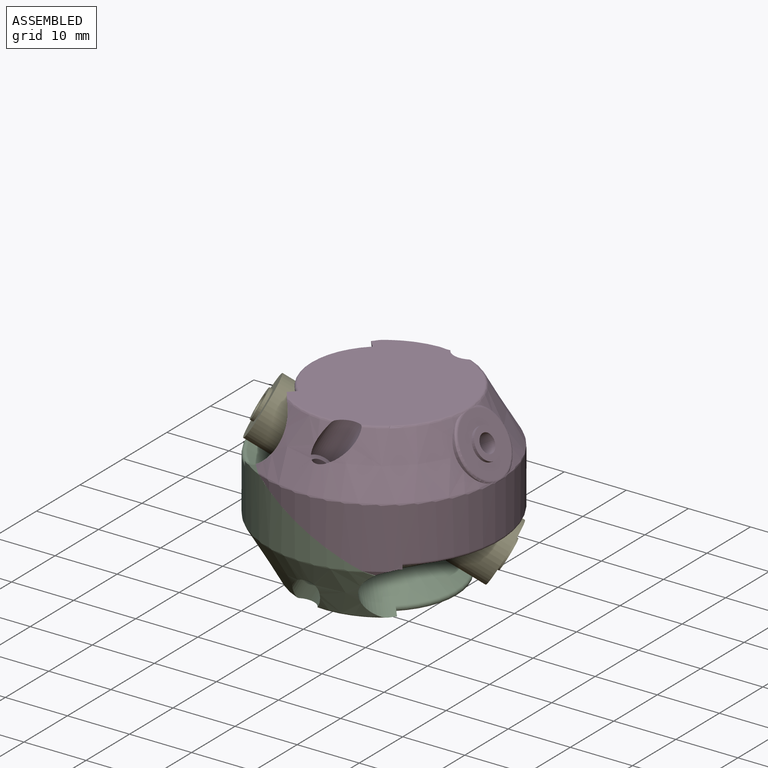
[diagram: assembled view]
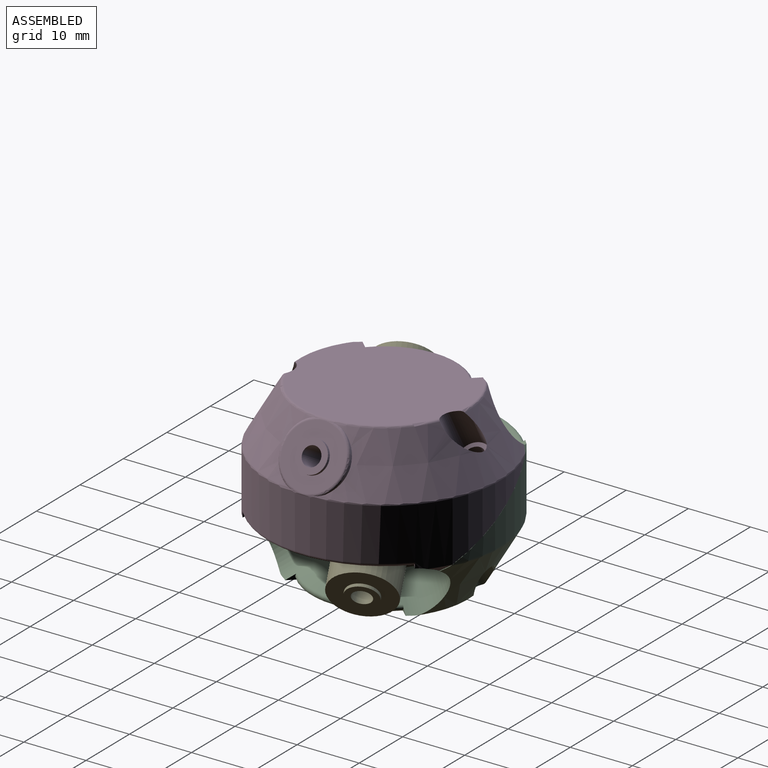
[diagram: assembled view, second angle]
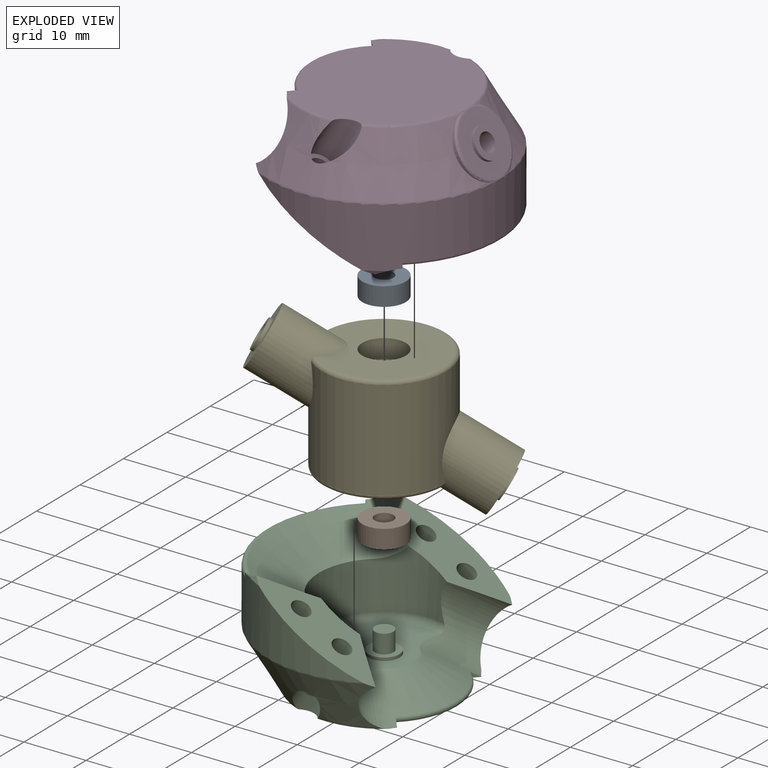
[diagram: exploded view]
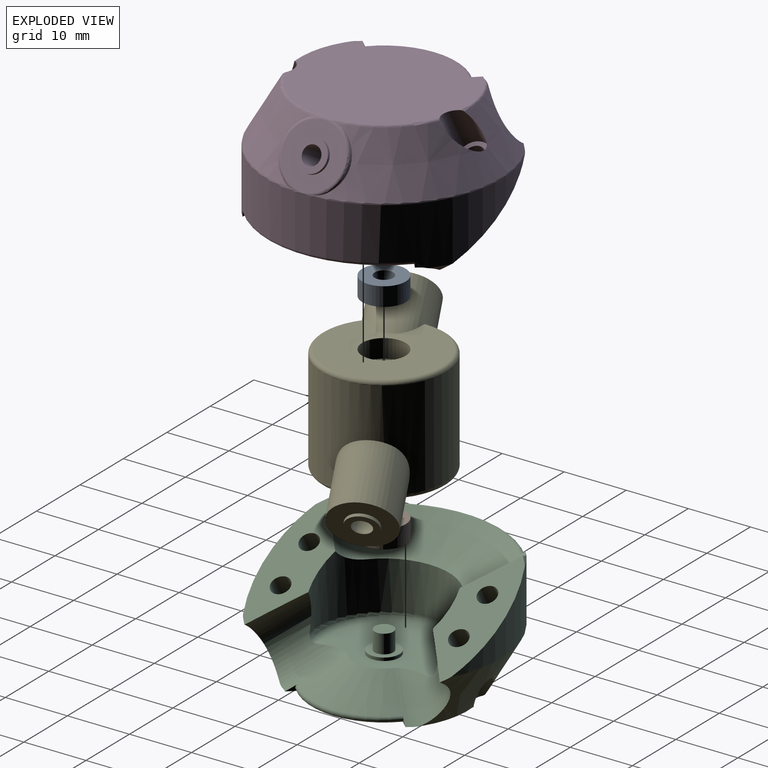
[diagram: exploded view, second angle]
ASSEMBLY  parts=5 mates=4
PART A: 4 faces, bbox 6.1x7x7.6 mm
  f0: cylinder r=1.5mm len=4.1mm, axis (-0.87,0,0.5), area 28.3mm2, adj f1,f3
  f1: plane 7x6.06mm, normal (-0.87,0,0.5), area 31.4mm2, adj f0,f2
  f2: cylinder r=3.5mm len=7.56mm, axis (-0.87,0,0.5), area 66mm2, adj f1,f3
  f3: plane 7x6.06mm, normal (0.87,0,-0.5), area 31.4mm2, adj f0,f2
PART B: same geometry as A
PART C: 49 faces, bbox 27.9x41x37.5 mm
  f0: torus R=13.31mm, axis (-0.87,0,0.5), area 5.2mm2, adj f4,f13,f37,f46
  f1: torus R=13.31mm, axis (-0.87,0,0.5), area 5.2mm2, adj f10,f13,f35,f48
  f2: cylinder r=10.5mm len=21mm, axis (-0.87,0,0.5), area 302.4mm2, adj f5,f11,f12,f29,f35,f36,f37,f38
  f3: torus R=13.31mm, axis (-0.87,0,0.5), area 16.6mm2, adj f4,f10,f13,f22,f46,f48
  f4: cone r=13.74mm half-angle=30deg, axis (0.87,0,-0.5), area 257.6mm2, adj f0,f3,f11,f15,f22,f23,f37,f46
  f5: torus R=9.36mm, axis (-0.87,0,0.5), area 66.7mm2, adj f2,f16,f35,f37
  f6: plane 1.41x1.38mm, normal (0.37,-0.68,0.64), area 0.6mm2, adj f13,f33,f37
  f7: cone r=16.18mm half-angle=30deg, axis (-0.87,0,0.5), area 1.5mm2, adj f8,f11,f36
  f8: cylinder r=18.81mm len=37.62mm, axis (-0.87,0,0.5), area 530.5mm2, adj f7,f9,f11,f12,f15,f21,f30,f31
  f9: plane 0.75x0.66mm, normal (-0.37,-0.68,-0.64), area 0.2mm2, adj f8,f31,f36
  f10: cone r=13.74mm half-angle=30deg, axis (0.87,0,-0.5), area 257.7mm2, adj f1,f3,f12,f15,f22,f24,f35,f48
  f11: plane 22.44x9.01mm, normal (1,0,0), area 115.8mm2, adj f2,f4,f7,f8,f15,f36,f37,f42
  f12: plane 22.44x9.01mm, normal (1,0,0), area 115.8mm2, adj f2,f8,f10,f15,f21,f35,f38,f39
  f13: plane 26.85x21.55mm, normal (-0.87,0,0.5), area 511.9mm2, adj f0,f1,f3,f6,f32,f33,f35,f37
  f14: plane 10x8.66mm, normal (-0.87,0,-0.5), area 58.9mm2, adj f22,f25
  f15: torus R=18.31mm, axis (-0.87,0,0.5), area 19.9mm2, adj f4,f8,f10,f11,f12,f22
  f16: plane 18.72x12.32mm, normal (0.87,0,-0.5), area 177.5mm2, adj f5,f17,f34,f35,f37
  f17: cylinder r=2.5mm len=5mm, axis (-0.87,0,0.5), area 7.9mm2, adj f16,f18
  f18: plane 5x4.33mm, normal (0.87,0,-0.5), area 12.6mm2, adj f17,f19
  f19: cylinder r=1.5mm len=4.1mm, axis (-0.87,0,0.5), area 28.3mm2, adj f18,f20
  f20: plane 3x2.6mm, normal (0.87,0,-0.5), area 7.1mm2, adj f19
  f21: cone r=16.18mm half-angle=30deg, axis (-0.87,0,0.5), area 1.5mm2, adj f8,f12,f38
  f22: torus R=5mm, axis (0.87,0,0.5), area 14.3mm2, adj f3,f4,f10,f14,f15,f23,f24
  f23: cylinder r=5.43mm len=8.06mm, axis (0.87,0,0.5), area 3.6mm2, adj f4,f22
  f24: cylinder r=5.43mm len=8.06mm, axis (0.87,0,0.5), area 3.6mm2, adj f10,f22
  f25: cylinder r=2.5mm len=5mm, axis (0.87,0,0.5), area 7.9mm2, adj f14,f26
  f26: plane 5x4.33mm, normal (-0.87,0,-0.5), area 12.6mm2, adj f25,f28
  f27: plane 3x2.6mm, normal (-0.87,0,-0.5), area 7.1mm2, adj f28
  f28: cylinder r=1.5mm len=6.26mm, axis (-0.87,0,-0.5), area 51.8mm2, adj f26,f27
  f29: cone r=18.06mm half-angle=60deg, axis (0.87,0,-0.5), area 206.7mm2, adj f2,f31,f36,f38
  f30: plane 0.75x0.66mm, normal (-0.37,0.68,-0.64), area 0.2mm2, adj f8,f31,f38
  f31: torus R=18.31mm, axis (-0.87,0,0.5), area 32.2mm2, adj f8,f9,f29,f30
  f32: plane 1.41x1.38mm, normal (0.37,0.68,0.64), area 0.6mm2, adj f13,f33,f35
  f33: torus R=11.31mm, axis (-0.87,0,0.5), area 25.3mm2, adj f6,f13,f32,f34
  f34: cone r=11.56mm half-angle=60deg, axis (-0.87,0,0.5), area 105.3mm2, adj f16,f33,f35,f37
  f35: cylinder r=5.5mm len=12.53mm, axis (0.14,0.64,-0.76), area 101mm2, adj f1,f2,f5,f10,f12,f13,f16,f32
  f36: cylinder r=5.5mm len=9.85mm, axis (0.14,0.64,-0.76), area 43mm2, adj f2,f7,f8,f9,f11,f29
  f37: cylinder r=5.5mm len=12.53mm, axis (-0.14,0.64,0.76), area 101mm2, adj f0,f2,f4,f5,f6,f11,f13,f16
  f38: cylinder r=5.5mm len=9.85mm, axis (-0.14,0.64,0.76), area 43mm2, adj f2,f8,f12,f21,f29,f30
  f39: cylinder r=1.5mm len=6mm, axis (1,0,0), area 56.5mm2, adj f12,f47
  f40: cylinder r=1.5mm len=6.1mm, axis (1,0,0), area 57.5mm2, adj f12,f41
  f41: plane 3x3mm, normal (1,0,0), area 7.1mm2, adj f40
  f42: cylinder r=1.5mm len=6.1mm, axis (1,0,0), area 57.5mm2, adj f11,f43
  f43: plane 3x3mm, normal (1,0,0), area 7.1mm2, adj f42
  f44: cylinder r=1.5mm len=6mm, axis (1,0,0), area 56.5mm2, adj f11,f45
  f45: plane 4.5x4.5mm, normal (-1,0,0), area 8.8mm2, adj f44,f46
  f46: cylinder r=2.25mm len=8.54mm, axis (1,0,0), area 75.1mm2, adj f0,f3,f4,f13,f45
  f47: plane 4.5x4.5mm, normal (-1,0,0), area 8.8mm2, adj f39,f48
  f48: cylinder r=2.25mm len=8.54mm, axis (1,0,0), area 75.1mm2, adj f1,f3,f10,f13,f47
PART D: same geometry as C
PART E: 25 faces, bbox 25.3x21.6x38.5 mm
  f0: plane 18.72x15.5mm, normal (-0.87,0,0.5), area 213.7mm2, adj f1,f4,f18
  f1: torus R=9.36mm, axis (-0.87,0,0.5), area 53.4mm2, adj f0,f2,f18
  f2: cylinder r=10mm len=25.34mm, axis (-0.87,0,0.5), area 864.3mm2, adj f1,f5,f18,f19
  f3: plane 7x6.06mm, normal (-0.87,0,0.5), area 18.8mm2, adj f4,f12
  f4: cylinder r=3.5mm len=7.56mm, axis (-0.87,0,0.5), area 66mm2, adj f0,f3
  f5: torus R=9.36mm, axis (-0.87,0,0.5), area 53.4mm2, adj f2,f6,f19
  f6: plane 18.72x15.5mm, normal (0.87,0,-0.5), area 213.7mm2, adj f5,f7,f19
  f7: cylinder r=3.5mm len=7.56mm, axis (-0.87,0,0.5), area 66mm2, adj f6,f8
  f8: plane 7x6.06mm, normal (0.87,0,-0.5), area 18.8mm2, adj f7,f9
  f9: cylinder r=2.5mm len=5mm, axis (-0.87,0,0.5), area 7.9mm2, adj f8,f10
  f10: plane 5x4.33mm, normal (0.87,0,-0.5), area 19.6mm2, adj f9
  f11: plane 5x4.33mm, normal (-0.87,0,0.5), area 19.6mm2, adj f12
  f12: cylinder r=2.5mm len=5mm, axis (-0.87,0,0.5), area 7.9mm2, adj f3,f11
  f13: plane 3x3mm, normal (0,0,1), area 7.1mm2, adj f14
  f14: cylinder r=1.5mm len=6.23mm, axis (0,0,1), area 58.7mm2, adj f13,f15
  f15: plane 5x5mm, normal (0,0,1), area 12.6mm2, adj f14,f16
  f16: cylinder r=2.5mm len=5mm, axis (0,0,1), area 7.9mm2, adj f15,f17
  f17: plane 10x10mm, normal (0,0,1), area 58.9mm2, adj f16,f18
  f18: cylinder r=5mm len=10.1mm, axis (0,0,1), area 286.1mm2, adj f0,f1,f2,f17
  f19: cylinder r=5mm len=10.1mm, axis (0,0,1), area 286.1mm2, adj f2,f5,f6,f20
  f20: plane 10x10mm, normal (0,0,-1), area 58.9mm2, adj f19,f21
  f21: cylinder r=2.5mm len=5mm, axis (0,0,1), area 7.9mm2, adj f20,f22
  f22: plane 5x5mm, normal (0,0,-1), area 12.6mm2, adj f21,f23
  f23: cylinder r=1.5mm len=6.23mm, axis (0,0,1), area 58.7mm2, adj f22,f24
  f24: plane 3x3mm, normal (0,0,-1), area 7.1mm2, adj f23
PLACE A rot(axis=(-0.2,0.91,0.35),64.5deg) t=(0,0,0)mm
PLACE B rot(axis=(-0.2,0.91,0.35),64.5deg) t=(0,0,-14.32)mm
PLACE C rot(axis=(0.87,0,0.5),180deg) t=(0,0,0)mm fixed
PLACE D rot(axis=(0.5,0,-0.87),180deg) t=(-0.02,0,0.01)mm
PLACE E rot(axis=(-0.85,-0.19,-0.49),167.6deg) t=(0,0,0)mm
MATE fastened B.f0 <-> E.f2  axis (0,0,1) through (0,0,-7.16)mm
MATE fastened D.f42 <-> C.f44  axis (-0.5,0,-0.87) through (3.27,-14.36,-1.89)mm
MATE revolute C.f2 <-> B.f0  axis (0,0,-1) through (0,0,-7.16)mm
MATE fastened A.f0 <-> E.f2  axis (0,0,1) through (0,0,7.16)mm
